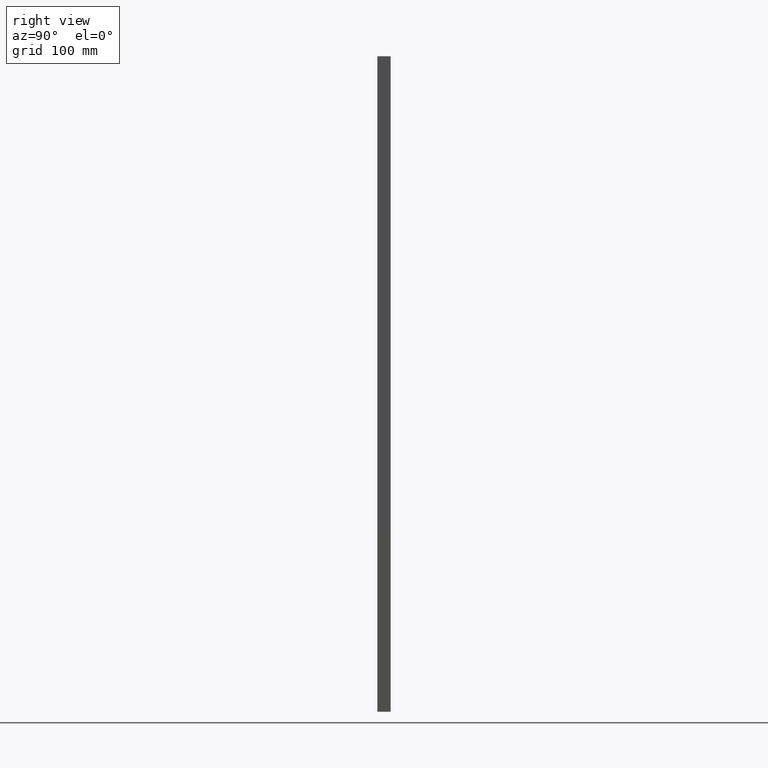
[diagram: clean part render]
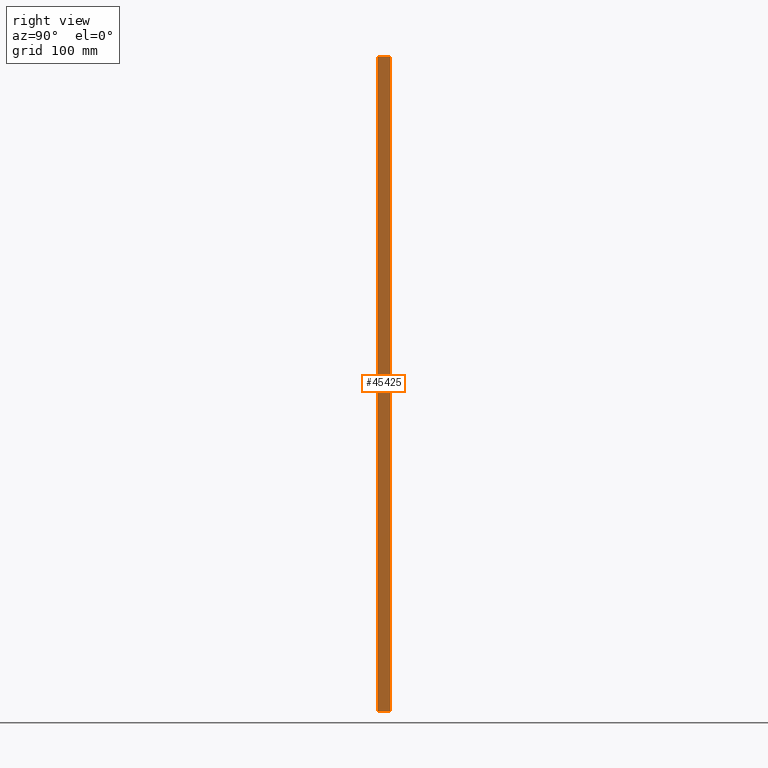
[diagram: same view with one face highlighted and labeled with its STEP entity id]
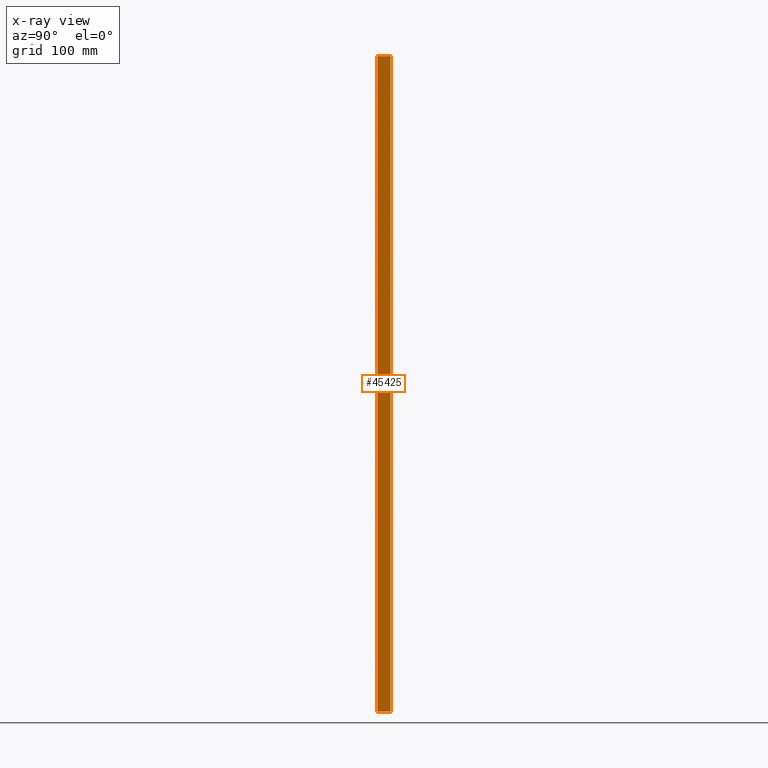
[diagram: x-ray of the same camera — body ghosted, the highlighted face saturated]
A machine part, right view. The second image highlights one B-rep face of the part: STEP entity #45425.
The next image is the same camera in x-ray: the body ghosted, the highlighted face saturated — about 0% of this face is hidden behind the body in this view.
In plain terms, the highlighted planar face has unit normal (1, -0, -0).
Its self-contained STEP definition (entity closure, byte-faithful):
#1051 = CARTESIAN_POINT ( 'NONE',  ( 490.0000000000002300, 10.00000000000000000, 1.942890293094023900E-013 ) ) ;
#1566 = VERTEX_POINT ( 'NONE', #40772 ) ;
#3015 = LINE ( 'NONE', #44167, #19390 ) ;
#4897 = FACE_OUTER_BOUND ( 'NONE', #46945, .T. ) ;
#8420 = DIRECTION ( 'NONE',  ( 1.000000000000000000, -3.061616997868382600E-016, -1.121437398611269600E-016 ) ) ;
#9448 = VERTEX_POINT ( 'NONE', #11845 ) ;
#11845 = CARTESIAN_POINT ( 'NONE',  ( 490.0000000000001100, -10.00000000000000000, -1.110223024625156500E-013 ) ) ;
#16812 = DIRECTION ( 'NONE',  ( -3.061616997868383100E-016, -1.000000000000000000, -3.061616997868382600E-016 ) ) ;
#19390 = VECTOR ( 'NONE', #16812, 1000.000000000000000 ) ;
#21925 = DIRECTION ( 'NONE',  ( 3.061616997868382200E-016, 1.000000000000000000, -3.061616997868382600E-016 ) ) ;
#22436 = EDGE_CURVE ( 'NONE', #1566, #23695, #23909, .T. ) ;
#22998 = VECTOR ( 'NONE', #61402, 1000.000000000000000 ) ;
#23695 = VERTEX_POINT ( 'NONE', #1051 ) ;
#23909 = LINE ( 'NONE', #61656, #22998 ) ;
#29483 = ORIENTED_EDGE ( 'NONE', *, *, #52295, .F. ) ;
#30039 = PLANE ( 'NONE',  #65480 ) ;
#33020 = ORIENTED_EDGE ( 'NONE', *, *, #22436, .T. ) ;
#35882 = LINE ( 'NONE', #71032, #41800 ) ;
#38506 = ORIENTED_EDGE ( 'NONE', *, *, #54558, .T. ) ;
#40772 = CARTESIAN_POINT ( 'NONE',  ( 490.0000000000001100, 10.00000000000000000, -990.0000000000000000 ) ) ;
#41173 = EDGE_CURVE ( 'NONE', #48357, #1566, #50300, .T. ) ;
#41800 = VECTOR ( 'NONE', #49394, 1000.000000000000000 ) ;
#43755 = CARTESIAN_POINT ( 'NONE',  ( 489.9999999999999400, 9.999999999999865000, -990.0000000000000000 ) ) ;
#44167 = CARTESIAN_POINT ( 'NONE',  ( 490.0000000000000600, 9.999999999999561200, 0.0000000000000000000 ) ) ;
#45425 = ADVANCED_FACE ( 'NONE', ( #4897 ), #30039, .T. ) ;
#46945 = EDGE_LOOP ( 'NONE', ( #33020, #38506, #29483, #68117 ) ) ;
#48357 = VERTEX_POINT ( 'NONE', #65574 ) ;
#49394 = DIRECTION ( 'NONE',  ( 1.121437398611269600E-016, 0.0000000000000000000, 1.000000000000000000 ) ) ;
#50300 = LINE ( 'NONE', #43755, #53736 ) ;
#52295 = EDGE_CURVE ( 'NONE', #48357, #9448, #35882, .T. ) ;
#53736 = VECTOR ( 'NONE', #21925, 1000.000000000000000 ) ;
#54558 = EDGE_CURVE ( 'NONE', #23695, #9448, #3015, .T. ) ;
#57915 = DIRECTION ( 'NONE',  ( 3.061616997868382600E-016, 1.000000000000000000, 0.0000000000000000000 ) ) ;
#58141 = CARTESIAN_POINT ( 'NONE',  ( 489.9999999999999400, 9.999999999999865000, -990.0000000000000000 ) ) ;
#61402 = DIRECTION ( 'NONE',  ( 1.121437398611269600E-016, 0.0000000000000000000, 1.000000000000000000 ) ) ;
#61656 = CARTESIAN_POINT ( 'NONE',  ( 490.0000000000001100, 10.00000000000000000, -990.0000000000000000 ) ) ;
#65480 = AXIS2_PLACEMENT_3D ( 'NONE', #58141, #8420, #57915 ) ;
#65574 = CARTESIAN_POINT ( 'NONE',  ( 490.0000000000000000, -10.00000000000000000, -990.0000000000000000 ) ) ;
#68117 = ORIENTED_EDGE ( 'NONE', *, *, #41173, .T. ) ;
#71032 = CARTESIAN_POINT ( 'NONE',  ( 490.0000000000000000, -10.00000000000000000, -990.0000000000000000 ) ) ;